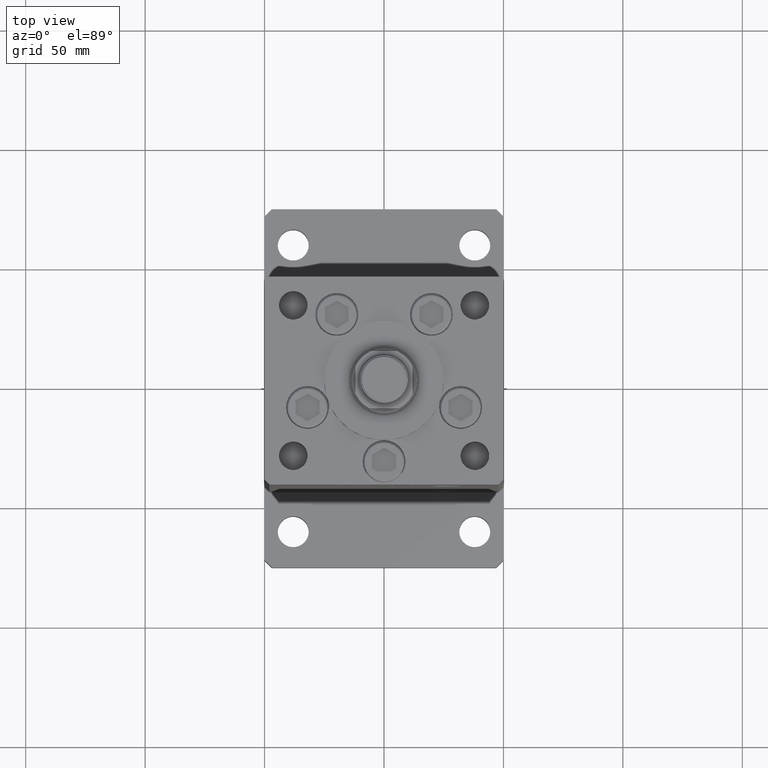
[diagram: clean part render]
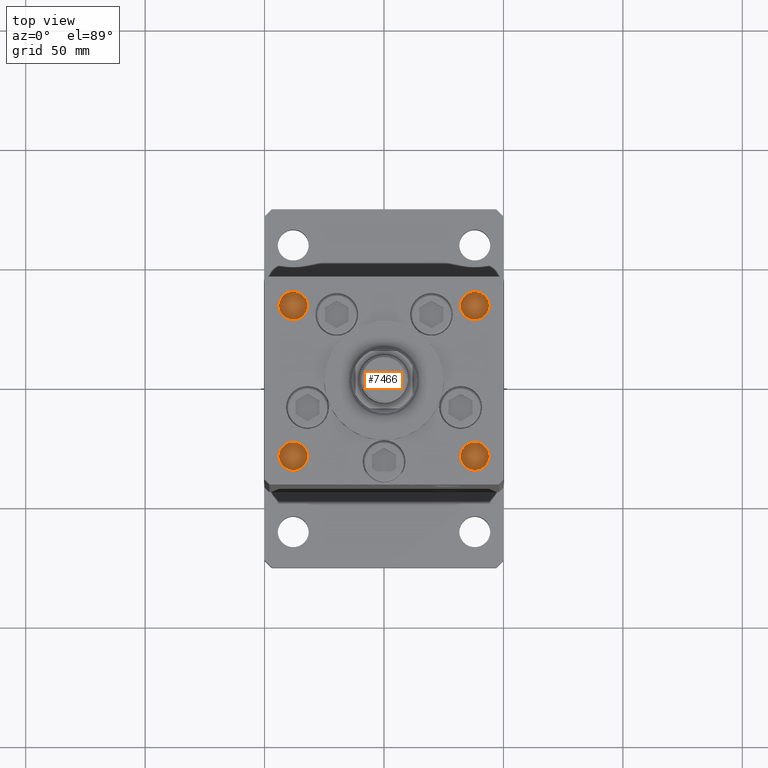
[diagram: same view with one face highlighted and labeled with its STEP entity id]
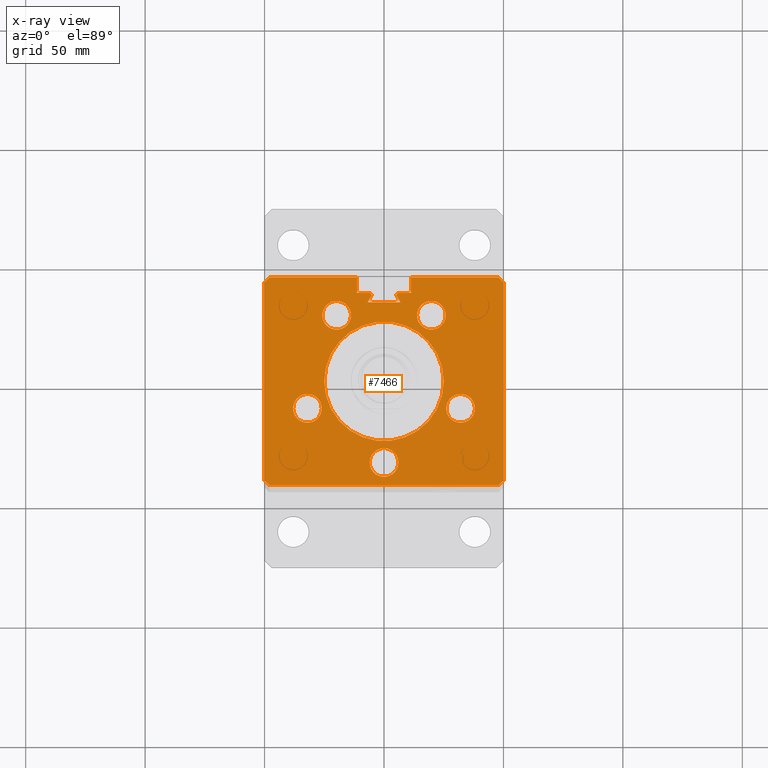
[diagram: x-ray of the same camera — body ghosted, the highlighted face saturated]
A machine part, top view. The second image highlights one B-rep face of the part: STEP entity #7466.
The next image is the same camera in x-ray: the body ghosted, the highlighted face saturated — about 0% of this face is hidden behind the body in this view.
In plain terms, the highlighted planar face has unit normal (0, 0, -1).
Its self-contained STEP definition (entity closure, byte-faithful):
#205 = VERTEX_POINT ( 'NONE', #25581 ) ;
#412 = FACE_BOUND ( 'NONE', #13850, .T. ) ;
#660 = EDGE_LOOP ( 'NONE', ( #44575, #12636 ) ) ;
#683 = FACE_BOUND ( 'NONE', #34792, .T. ) ;
#772 = EDGE_LOOP ( 'NONE', ( #31084, #20540 ) ) ;
#875 = DIRECTION ( 'NONE',  ( -1.000000000000000000, 0.000000000000000000, 0.000000000000000000 ) ) ;
#1034 = CARTESIAN_POINT ( 'NONE',  ( 0.000000000000000000, 36.99999999999999289, 148.5000000000000000 ) ) ;
#1080 = DIRECTION ( 'NONE',  ( 1.000000000000000000, 0.000000000000000000, 0.000000000000000000 ) ) ;
#1464 = LINE ( 'NONE', #18176, #18011 ) ;
#1532 = LINE ( 'NONE', #34912, #19777 ) ;
#1805 = ORIENTED_EDGE ( 'NONE', *, *, #51209, .F. ) ;
#1918 = EDGE_CURVE ( 'NONE', #31485, #20395, #3239, .T. ) ;
#1989 = VERTEX_POINT ( 'NONE', #3608 ) ;
#2248 = VECTOR ( 'NONE', #40827, 1000.000000000000000 ) ;
#2406 = VECTOR ( 'NONE', #29801, 1000.000000000000000 ) ;
#2408 = EDGE_CURVE ( 'NONE', #30475, #33214, #51959, .T. ) ;
#2467 = EDGE_CURVE ( 'NONE', #42352, #9868, #15726, .T. ) ;
#2491 = CARTESIAN_POINT ( 'NONE',  ( -49.99999999999998579, -41.49999999999999289, 148.5000000000000000 ) ) ;
#2498 = LINE ( 'NONE', #18123, #24694 ) ;
#2776 = DIRECTION ( 'NONE',  ( 1.000000000000000000, 0.000000000000000000, 0.000000000000000000 ) ) ;
#2987 = CARTESIAN_POINT ( 'NONE',  ( 11.24999999999999112, 43.50000000000000000, 148.5000000000000000 ) ) ;
#3037 = VERTEX_POINT ( 'NONE', #50360 ) ;
#3239 = CIRCLE ( 'NONE', #9373, 6.000000000000000000 ) ;
#3608 = CARTESIAN_POINT ( 'NONE',  ( 6.183333333333997928, 36.99999999999999289, 148.5000000000000000 ) ) ;
#3821 = EDGE_LOOP ( 'NONE', ( #7679, #1805 ) ) ;
#3849 = CIRCLE ( 'NONE', #16137, 0.9333333333340008142 ) ;
#4123 = CARTESIAN_POINT ( 'NONE',  ( 19.44653440471352113, 11.22746187336665713, 148.5000000000000000 ) ) ;
#4324 = CARTESIAN_POINT ( 'NONE',  ( -25.00000000000000000, 0.000000000000000000, 148.5000000000000000 ) ) ;
#4360 = DIRECTION ( 'NONE',  ( 1.000000000000000000, 0.000000000000000000, 0.000000000000000000 ) ) ;
#4482 = VERTEX_POINT ( 'NONE', #30656 ) ;
#4804 = DIRECTION ( 'NONE',  ( 0.000000000000000000, 0.000000000000000000, 1.000000000000000000 ) ) ;
#4943 = AXIS2_PLACEMENT_3D ( 'NONE', #12100, #16471, #41368 ) ;
#4993 = AXIS2_PLACEMENT_3D ( 'NONE', #32657, #7480, #17064 ) ;
#5341 = AXIS2_PLACEMENT_3D ( 'NONE', #53653, #39988, #23579 ) ;
#5604 = DIRECTION ( 'NONE',  ( 1.000000000000000000, 0.000000000000000000, 0.000000000000000000 ) ) ;
#6139 = CARTESIAN_POINT ( 'NONE',  ( -6.183333333333997928, 36.06666666666598786, 148.5000000000000000 ) ) ;
#6315 = CIRCLE ( 'NONE', #39546, 5.999999999999998224 ) ;
#6342 = LINE ( 'NONE', #9649, #47345 ) ;
#6428 = EDGE_CURVE ( 'NONE', #20395, #31485, #8838, .T. ) ;
#6947 = ORIENTED_EDGE ( 'NONE', *, *, #24638, .T. ) ;
#7123 = LINE ( 'NONE', #19726, #18857 ) ;
#7423 = CARTESIAN_POINT ( 'NONE',  ( -11.24999999999999822, 0.000000000000000000, 148.5000000000000000 ) ) ;
#7466 = ADVANCED_FACE ( 'NONE', ( #46672, #54086, #25601, #683, #9175, #37908, #412 ), #25867, .F. ) ;
#7480 = DIRECTION ( 'NONE',  ( 0.000000000000000000, 0.000000000000000000, 1.000000000000000000 ) ) ;
#7494 = VECTOR ( 'NONE', #39444, 1000.000000000000114 ) ;
#7679 = ORIENTED_EDGE ( 'NONE', *, *, #19044, .F. ) ;
#8334 = ORIENTED_EDGE ( 'NONE', *, *, #9891, .F. ) ;
#8418 = EDGE_CURVE ( 'NONE', #9868, #42352, #50872, .T. ) ;
#8458 = EDGE_CURVE ( 'NONE', #48253, #13357, #6342, .T. ) ;
#8488 = EDGE_LOOP ( 'NONE', ( #12477, #53087, #11725, #25642, #12990, #6947, #18585, #41984, #39371, #26934, #31574, #30040, #31903, #40657, #39251, #27242, #29997, #19086, #20325 ) ) ;
#8718 = DIRECTION ( 'NONE',  ( 0.000000000000000000, 0.000000000000000000, -1.000000000000000000 ) ) ;
#8791 = CARTESIAN_POINT ( 'NONE',  ( 5.375042956467942723, 35.59999999999898534, 148.5000000000000000 ) ) ;
#8838 = CIRCLE ( 'NONE', #5341, 6.000000000000000000 ) ;
#9042 = DIRECTION ( 'NONE',  ( 3.344045254895050973E-16, -1.000000000000000000, 0.000000000000000000 ) ) ;
#9175 = FACE_BOUND ( 'NONE', #772, .T. ) ;
#9373 = AXIS2_PLACEMENT_3D ( 'NONE', #17033, #45764, #12919 ) ;
#9582 = DIRECTION ( 'NONE',  ( 0.000000000000000000, 0.000000000000000000, 1.000000000000000000 ) ) ;
#9649 = CARTESIAN_POINT ( 'NONE',  ( 50.00000000000001421, 41.49999999999999289, 148.5000000000000000 ) ) ;
#9868 = VERTEX_POINT ( 'NONE', #50975 ) ;
#9891 = EDGE_CURVE ( 'NONE', #18971, #46195, #6315, .T. ) ;
#9985 = DIRECTION ( 'NONE',  ( 0.000000000000000000, 0.000000000000000000, -1.000000000000000000 ) ) ;
#10177 = AXIS2_PLACEMENT_3D ( 'NONE', #25616, #4804, #30524 ) ;
#10390 = LINE ( 'NONE', #47877, #15357 ) ;
#10850 = CARTESIAN_POINT ( 'NONE',  ( 49.99999999999998579, -41.49999999999999289, 148.5000000000000000 ) ) ;
#11107 = VERTEX_POINT ( 'NONE', #14495 ) ;
#11725 = ORIENTED_EDGE ( 'NONE', *, *, #49857, .F. ) ;
#12033 = AXIS2_PLACEMENT_3D ( 'NONE', #32553, #20234, #36924 ) ;
#12100 = CARTESIAN_POINT ( 'NONE',  ( -19.82068048781374259, 27.62500000000000355, 148.5000000000000000 ) ) ;
#12477 = ORIENTED_EDGE ( 'NONE', *, *, #24189, .T. ) ;
#12636 = ORIENTED_EDGE ( 'NONE', *, *, #1918, .F. ) ;
#12884 = LINE ( 'NONE', #21900, #20623 ) ;
#12919 = DIRECTION ( 'NONE',  ( 1.000000000000000000, 0.000000000000000000, 0.000000000000000000 ) ) ;
#12947 = VERTEX_POINT ( 'NONE', #15729 ) ;
#12990 = ORIENTED_EDGE ( 'NONE', *, *, #44501, .T. ) ;
#13151 = CARTESIAN_POINT ( 'NONE',  ( -26.05550741379015989, -11.33333333333333570, 148.5000000000000000 ) ) ;
#13357 = VERTEX_POINT ( 'NONE', #25093 ) ;
#13624 = CIRCLE ( 'NONE', #34589, 0.9333333333340008142 ) ;
#13644 = LINE ( 'NONE', #1034, #2406 ) ;
#13850 = EDGE_LOOP ( 'NONE', ( #40174, #23563 ) ) ;
#14010 = LINE ( 'NONE', #42759, #49460 ) ;
#14283 = CARTESIAN_POINT ( 'NONE',  ( -32.05550741379015989, -11.33333333333333570, 148.5000000000000000 ) ) ;
#14388 = CARTESIAN_POINT ( 'NONE',  ( 11.24999999999999822, 36.99999999999999289, 148.5000000000000000 ) ) ;
#14495 = CARTESIAN_POINT ( 'NONE',  ( -5.249999999999996447, 36.06666666666598786, 148.5000000000000000 ) ) ;
#14765 = EDGE_CURVE ( 'NONE', #35938, #48253, #2498, .T. ) ;
#15012 = AXIS2_PLACEMENT_3D ( 'NONE', #29167, #42561, #51041 ) ;
#15054 = CARTESIAN_POINT ( 'NONE',  ( 13.82068048781373371, 27.62500000000000711, 148.5000000000000000 ) ) ;
#15357 = VECTOR ( 'NONE', #40219, 1000.000000000000000 ) ;
#15627 = DIRECTION ( 'NONE',  ( 1.000000000000000000, 0.000000000000000000, 0.000000000000000000 ) ) ;
#15726 = CIRCLE ( 'NONE', #27075, 5.999999999999998224 ) ;
#15729 = CARTESIAN_POINT ( 'NONE',  ( -47.99999999999998579, -43.50000000000000000, 148.5000000000000000 ) ) ;
#15916 = CARTESIAN_POINT ( 'NONE',  ( -11.24999999999999822, 43.50000000000000000, 148.5000000000000000 ) ) ;
#15962 = VERTEX_POINT ( 'NONE', #30709 ) ;
#16137 = AXIS2_PLACEMENT_3D ( 'NONE', #25150, #8718, #49781 ) ;
#16471 = DIRECTION ( 'NONE',  ( 0.000000000000000000, 0.000000000000000000, 1.000000000000000000 ) ) ;
#16694 = LINE ( 'NONE', #20529, #34742 ) ;
#17033 = CARTESIAN_POINT ( 'NONE',  ( 4.163799117101000559E-15, -34.00000000000000000, 148.5000000000000000 ) ) ;
#17064 = DIRECTION ( 'NONE',  ( 1.000000000000000000, 0.000000000000000000, 0.000000000000000000 ) ) ;
#18011 = VECTOR ( 'NONE', #43072, 1000.000000000000000 ) ;
#18123 = CARTESIAN_POINT ( 'NONE',  ( 48.00000000000000711, 43.50000000000000000, 148.5000000000000000 ) ) ;
#18176 = CARTESIAN_POINT ( 'NONE',  ( 0.000000000000000000, 36.99999999999999289, 148.5000000000000000 ) ) ;
#18471 = CARTESIAN_POINT ( 'NONE',  ( 6.183333333333997928, 36.06666666666598786, 148.5000000000000000 ) ) ;
#18584 = VECTOR ( 'NONE', #48119, 1000.000000000000000 ) ;
#18585 = ORIENTED_EDGE ( 'NONE', *, *, #33847, .T. ) ;
#18676 = CARTESIAN_POINT ( 'NONE',  ( 19.82068048781373548, 27.62500000000000711, 148.5000000000000000 ) ) ;
#18857 = VECTOR ( 'NONE', #15627, 1000.000000000000000 ) ;
#18919 = LINE ( 'NONE', #2491, #7494 ) ;
#18971 = VERTEX_POINT ( 'NONE', #13151 ) ;
#19044 = EDGE_CURVE ( 'NONE', #4482, #32898, #33555, .T. ) ;
#19069 = DIRECTION ( 'NONE',  ( -0.000000000000000000, 0.000000000000000000, 1.000000000000000000 ) ) ;
#19086 = ORIENTED_EDGE ( 'NONE', *, *, #45112, .F. ) ;
#19118 = DIRECTION ( 'NONE',  ( 0.000000000000000000, 0.000000000000000000, 1.000000000000000000 ) ) ;
#19726 = CARTESIAN_POINT ( 'NONE',  ( -11.24999999999999822, 43.50000000000000000, 148.5000000000000000 ) ) ;
#19777 = VECTOR ( 'NONE', #42339, 1000.000000000000000 ) ;
#19810 = CIRCLE ( 'NONE', #4943, 6.000000000000001776 ) ;
#20089 = VERTEX_POINT ( 'NONE', #21050 ) ;
#20234 = DIRECTION ( 'NONE',  ( -0.000000000000000000, 0.000000000000000000, 1.000000000000000000 ) ) ;
#20325 = ORIENTED_EDGE ( 'NONE', *, *, #41157, .F. ) ;
#20395 = VERTEX_POINT ( 'NONE', #41333 ) ;
#20448 = CARTESIAN_POINT ( 'NONE',  ( -38.05550741379015989, -11.33333333333333570, 148.5000000000000000 ) ) ;
#20529 = CARTESIAN_POINT ( 'NONE',  ( -47.99999999999998579, -43.50000000000000000, 148.5000000000000000 ) ) ;
#20540 = ORIENTED_EDGE ( 'NONE', *, *, #31147, .F. ) ;
#20623 = VECTOR ( 'NONE', #9042, 1000.000000000000000 ) ;
#21050 = CARTESIAN_POINT ( 'NONE',  ( -48.00000000000001421, 43.50000000000000711, 148.5000000000000000 ) ) ;
#21900 = CARTESIAN_POINT ( 'NONE',  ( -50.00000000000001421, 41.49999999999999289, 148.5000000000000000 ) ) ;
#22520 = DIRECTION ( 'NONE',  ( 1.000000000000000000, 0.000000000000000000, 0.000000000000000000 ) ) ;
#22532 = CIRCLE ( 'NONE', #33032, 25.00000000000000000 ) ;
#23013 = VERTEX_POINT ( 'NONE', #41496 ) ;
#23563 = ORIENTED_EDGE ( 'NONE', *, *, #53833, .F. ) ;
#23579 = DIRECTION ( 'NONE',  ( 1.000000000000000000, 0.000000000000000000, 0.000000000000000000 ) ) ;
#23948 = EDGE_CURVE ( 'NONE', #20089, #3037, #1532, .T. ) ;
#23990 = LINE ( 'NONE', #10850, #34695 ) ;
#24189 = EDGE_CURVE ( 'NONE', #39632, #34897, #1464, .T. ) ;
#24638 = EDGE_CURVE ( 'NONE', #38704, #12947, #18919, .T. ) ;
#24694 = VECTOR ( 'NONE', #35879, 1000.000000000000000 ) ;
#24930 = DIRECTION ( 'NONE',  ( 0.4999999999999996114, -0.8660254037844389297, 0.000000000000000000 ) ) ;
#25093 = CARTESIAN_POINT ( 'NONE',  ( 49.99999999999998579, -41.49999999999999289, 148.5000000000000000 ) ) ;
#25150 = CARTESIAN_POINT ( 'NONE',  ( -6.183333333333997928, 36.06666666666598786, 148.5000000000000000 ) ) ;
#25581 = CARTESIAN_POINT ( 'NONE',  ( -6.876153656360465050, 32.99999999999986500, 148.5000000000000000 ) ) ;
#25601 = FACE_BOUND ( 'NONE', #3821, .T. ) ;
#25616 = CARTESIAN_POINT ( 'NONE',  ( 32.05550741379015989, -11.33333333333332682, 148.5000000000000000 ) ) ;
#25642 = ORIENTED_EDGE ( 'NONE', *, *, #23948, .T. ) ;
#25762 = ORIENTED_EDGE ( 'NONE', *, *, #8418, .F. ) ;
#25867 = PLANE ( 'NONE',  #15012 ) ;
#26011 = CARTESIAN_POINT ( 'NONE',  ( 32.05550741379015989, -11.33333333333332682, 148.5000000000000000 ) ) ;
#26512 = VERTEX_POINT ( 'NONE', #8791 ) ;
#26671 = DIRECTION ( 'NONE',  ( 0.000000000000000000, 0.000000000000000000, -1.000000000000000000 ) ) ;
#26773 = LINE ( 'NONE', #52238, #18584 ) ;
#26934 = ORIENTED_EDGE ( 'NONE', *, *, #14765, .F. ) ;
#27047 = DIRECTION ( 'NONE',  ( 1.000000000000000000, 0.000000000000000000, 0.000000000000000000 ) ) ;
#27075 = AXIS2_PLACEMENT_3D ( 'NONE', #47852, #19118, #27047 ) ;
#27108 = CARTESIAN_POINT ( 'NONE',  ( -25.82068048781374259, 27.62500000000000355, 148.5000000000000000 ) ) ;
#27242 = ORIENTED_EDGE ( 'NONE', *, *, #44040, .T. ) ;
#28229 = LINE ( 'NONE', #7423, #2248 ) ;
#28595 = CIRCLE ( 'NONE', #4993, 5.999999999999998224 ) ;
#28997 = EDGE_CURVE ( 'NONE', #46195, #18971, #28595, .T. ) ;
#29029 = LINE ( 'NONE', #4123, #46832 ) ;
#29167 = CARTESIAN_POINT ( 'NONE',  ( 0.000000000000000000, 0.000000000000000000, 148.5000000000000000 ) ) ;
#29251 = CIRCLE ( 'NONE', #34464, 0.9333333333340008142 ) ;
#29801 = DIRECTION ( 'NONE',  ( -1.000000000000000000, 0.000000000000000000, 0.000000000000000000 ) ) ;
#29997 = ORIENTED_EDGE ( 'NONE', *, *, #44556, .T. ) ;
#30040 = ORIENTED_EDGE ( 'NONE', *, *, #2408, .T. ) ;
#30475 = VERTEX_POINT ( 'NONE', #2987 ) ;
#30524 = DIRECTION ( 'NONE',  ( 1.000000000000000000, 0.000000000000000000, 0.000000000000000000 ) ) ;
#30656 = CARTESIAN_POINT ( 'NONE',  ( 38.05550741379015989, -11.33333333333332682, 148.5000000000000000 ) ) ;
#30709 = CARTESIAN_POINT ( 'NONE',  ( 25.00000000000000000, 3.061616997868383043E-15, 148.5000000000000000 ) ) ;
#31084 = ORIENTED_EDGE ( 'NONE', *, *, #44239, .F. ) ;
#31147 = EDGE_CURVE ( 'NONE', #35260, #23013, #19810, .T. ) ;
#31426 = CARTESIAN_POINT ( 'NONE',  ( 11.24999999999999822, 0.000000000000000000, 148.5000000000000000 ) ) ;
#31485 = VERTEX_POINT ( 'NONE', #35906 ) ;
#31574 = ORIENTED_EDGE ( 'NONE', *, *, #35576, .F. ) ;
#31903 = ORIENTED_EDGE ( 'NONE', *, *, #52836, .T. ) ;
#32193 = CARTESIAN_POINT ( 'NONE',  ( 0.000000000000000000, 0.000000000000000000, 148.5000000000000000 ) ) ;
#32509 = AXIS2_PLACEMENT_3D ( 'NONE', #18676, #52063, #22520 ) ;
#32553 = CARTESIAN_POINT ( 'NONE',  ( 0.000000000000000000, 0.000000000000000000, 148.5000000000000000 ) ) ;
#32657 = CARTESIAN_POINT ( 'NONE',  ( -32.05550741379015989, -11.33333333333333570, 148.5000000000000000 ) ) ;
#32873 = CIRCLE ( 'NONE', #10177, 5.999999999999998224 ) ;
#32898 = VERTEX_POINT ( 'NONE', #46502 ) ;
#33032 = AXIS2_PLACEMENT_3D ( 'NONE', #32193, #19069, #35741 ) ;
#33214 = VERTEX_POINT ( 'NONE', #14388 ) ;
#33555 = CIRCLE ( 'NONE', #52838, 5.999999999999998224 ) ;
#33694 = CIRCLE ( 'NONE', #44216, 6.000000000000001776 ) ;
#33847 = EDGE_CURVE ( 'NONE', #12947, #53928, #16694, .T. ) ;
#34002 = CARTESIAN_POINT ( 'NONE',  ( -6.183333333333997928, 36.99999999999999289, 148.5000000000000000 ) ) ;
#34464 = AXIS2_PLACEMENT_3D ( 'NONE', #18471, #26671, #5604 ) ;
#34589 = AXIS2_PLACEMENT_3D ( 'NONE', #6139, #9985, #35423 ) ;
#34695 = VECTOR ( 'NONE', #40404, 1000.000000000000114 ) ;
#34742 = VECTOR ( 'NONE', #4360, 1000.000000000000000 ) ;
#34792 = EDGE_LOOP ( 'NONE', ( #25762, #42098 ) ) ;
#34897 = VERTEX_POINT ( 'NONE', #45632 ) ;
#34912 = CARTESIAN_POINT ( 'NONE',  ( -48.00000000000001421, 43.50000000000000711, 148.5000000000000000 ) ) ;
#34978 = EDGE_LOOP ( 'NONE', ( #8334, #51482 ) ) ;
#35260 = VERTEX_POINT ( 'NONE', #27108 ) ;
#35423 = DIRECTION ( 'NONE',  ( 1.000000000000000000, 0.000000000000000000, 0.000000000000000000 ) ) ;
#35576 = EDGE_CURVE ( 'NONE', #30475, #35938, #26773, .T. ) ;
#35630 = DIRECTION ( 'NONE',  ( -3.344045254895050973E-16, -1.000000000000000000, 0.000000000000000000 ) ) ;
#35741 = DIRECTION ( 'NONE',  ( 1.000000000000000000, 0.000000000000000000, 0.000000000000000000 ) ) ;
#35879 = DIRECTION ( 'NONE',  ( 0.7071067811865487940, -0.7071067811865463515, 0.000000000000000000 ) ) ;
#35888 = DIRECTION ( 'NONE',  ( 0.000000000000000000, 0.000000000000000000, 1.000000000000000000 ) ) ;
#35906 = CARTESIAN_POINT ( 'NONE',  ( -5.999999999999995559, -34.00000000000000000, 148.5000000000000000 ) ) ;
#35938 = VERTEX_POINT ( 'NONE', #42875 ) ;
#36924 = DIRECTION ( 'NONE',  ( 1.000000000000000000, 0.000000000000000000, 0.000000000000000000 ) ) ;
#37908 = FACE_OUTER_BOUND ( 'NONE', #8488, .T. ) ;
#38331 = CARTESIAN_POINT ( 'NONE',  ( -5.375042956467942723, 35.59999999999898534, 148.5000000000000000 ) ) ;
#38704 = VERTEX_POINT ( 'NONE', #52930 ) ;
#39251 = ORIENTED_EDGE ( 'NONE', *, *, #44425, .T. ) ;
#39371 = ORIENTED_EDGE ( 'NONE', *, *, #8458, .F. ) ;
#39444 = DIRECTION ( 'NONE',  ( 0.7071067811865474617, -0.7071067811865474617, 0.000000000000000000 ) ) ;
#39546 = AXIS2_PLACEMENT_3D ( 'NONE', #14283, #47140, #51511 ) ;
#39632 = VERTEX_POINT ( 'NONE', #34002 ) ;
#39733 = VERTEX_POINT ( 'NONE', #15916 ) ;
#39988 = DIRECTION ( 'NONE',  ( 0.000000000000000000, 0.000000000000000000, 1.000000000000000000 ) ) ;
#40014 = CARTESIAN_POINT ( 'NONE',  ( -19.82068048781374259, 27.62500000000000355, 148.5000000000000000 ) ) ;
#40174 = ORIENTED_EDGE ( 'NONE', *, *, #52814, .F. ) ;
#40219 = DIRECTION ( 'NONE',  ( 0.4999999999999996114, 0.8660254037844389297, 0.000000000000000000 ) ) ;
#40305 = VERTEX_POINT ( 'NONE', #4324 ) ;
#40404 = DIRECTION ( 'NONE',  ( -0.7071067811865474617, -0.7071067811865474617, 0.000000000000000000 ) ) ;
#40657 = ORIENTED_EDGE ( 'NONE', *, *, #45133, .F. ) ;
#40827 = DIRECTION ( 'NONE',  ( 0.000000000000000000, 1.000000000000000000, 0.000000000000000000 ) ) ;
#41157 = EDGE_CURVE ( 'NONE', #39632, #11107, #3849, .T. ) ;
#41333 = CARTESIAN_POINT ( 'NONE',  ( 6.000000000000004441, -34.00000000000000000, 148.5000000000000000 ) ) ;
#41368 = DIRECTION ( 'NONE',  ( 1.000000000000000000, 0.000000000000000000, 0.000000000000000000 ) ) ;
#41496 = CARTESIAN_POINT ( 'NONE',  ( -13.82068048781373903, 27.62500000000000355, 148.5000000000000000 ) ) ;
#41984 = ORIENTED_EDGE ( 'NONE', *, *, #53764, .F. ) ;
#42098 = ORIENTED_EDGE ( 'NONE', *, *, #2467, .F. ) ;
#42203 = VERTEX_POINT ( 'NONE', #38331 ) ;
#42339 = DIRECTION ( 'NONE',  ( -0.7071067811865463515, -0.7071067811865487940, 0.000000000000000000 ) ) ;
#42352 = VERTEX_POINT ( 'NONE', #15054 ) ;
#42561 = DIRECTION ( 'NONE',  ( 0.000000000000000000, 0.000000000000000000, -1.000000000000000000 ) ) ;
#42611 = CIRCLE ( 'NONE', #12033, 25.00000000000000000 ) ;
#42759 = CARTESIAN_POINT ( 'NONE',  ( 0.000000000000000000, 32.99999999999986500, 148.5000000000000000 ) ) ;
#42875 = CARTESIAN_POINT ( 'NONE',  ( 48.00000000000000711, 43.50000000000000000, 148.5000000000000000 ) ) ;
#43072 = DIRECTION ( 'NONE',  ( -1.000000000000000000, 0.000000000000000000, 0.000000000000000000 ) ) ;
#44040 = EDGE_CURVE ( 'NONE', #53323, #205, #14010, .T. ) ;
#44216 = AXIS2_PLACEMENT_3D ( 'NONE', #40014, #35888, #2776 ) ;
#44239 = EDGE_CURVE ( 'NONE', #23013, #35260, #33694, .T. ) ;
#44327 = EDGE_CURVE ( 'NONE', #34897, #39733, #28229, .T. ) ;
#44425 = EDGE_CURVE ( 'NONE', #26512, #53323, #29029, .T. ) ;
#44501 = EDGE_CURVE ( 'NONE', #3037, #38704, #12884, .T. ) ;
#44556 = EDGE_CURVE ( 'NONE', #205, #42203, #10390, .T. ) ;
#44575 = ORIENTED_EDGE ( 'NONE', *, *, #6428, .F. ) ;
#44954 = CARTESIAN_POINT ( 'NONE',  ( 6.876153656360465050, 32.99999999999986500, 148.5000000000000000 ) ) ;
#45112 = EDGE_CURVE ( 'NONE', #11107, #42203, #13624, .T. ) ;
#45133 = EDGE_CURVE ( 'NONE', #26512, #1989, #29251, .T. ) ;
#45632 = CARTESIAN_POINT ( 'NONE',  ( -11.24999999999999822, 36.99999999999999289, 148.5000000000000000 ) ) ;
#45764 = DIRECTION ( 'NONE',  ( 0.000000000000000000, 0.000000000000000000, 1.000000000000000000 ) ) ;
#45853 = CARTESIAN_POINT ( 'NONE',  ( 47.99999999999998579, -43.50000000000000000, 148.5000000000000000 ) ) ;
#46195 = VERTEX_POINT ( 'NONE', #20448 ) ;
#46502 = CARTESIAN_POINT ( 'NONE',  ( 26.05550741379016344, -11.33333333333332682, 148.5000000000000000 ) ) ;
#46672 = FACE_BOUND ( 'NONE', #34978, .T. ) ;
#46832 = VECTOR ( 'NONE', #24930, 1000.000000000000000 ) ;
#47140 = DIRECTION ( 'NONE',  ( 0.000000000000000000, 0.000000000000000000, 1.000000000000000000 ) ) ;
#47170 = CARTESIAN_POINT ( 'NONE',  ( 50.00000000000001421, 41.49999999999999289, 148.5000000000000000 ) ) ;
#47345 = VECTOR ( 'NONE', #35630, 1000.000000000000000 ) ;
#47852 = CARTESIAN_POINT ( 'NONE',  ( 19.82068048781373548, 27.62500000000000711, 148.5000000000000000 ) ) ;
#47877 = CARTESIAN_POINT ( 'NONE',  ( -19.44653440471352113, 11.22746187336665713, 148.5000000000000000 ) ) ;
#48119 = DIRECTION ( 'NONE',  ( 1.000000000000000000, 0.000000000000000000, 0.000000000000000000 ) ) ;
#48253 = VERTEX_POINT ( 'NONE', #47170 ) ;
#49460 = VECTOR ( 'NONE', #875, 1000.000000000000000 ) ;
#49781 = DIRECTION ( 'NONE',  ( 1.000000000000000000, 0.000000000000000000, 0.000000000000000000 ) ) ;
#49857 = EDGE_CURVE ( 'NONE', #20089, #39733, #7123, .T. ) ;
#50360 = CARTESIAN_POINT ( 'NONE',  ( -50.00000000000001421, 41.49999999999999289, 148.5000000000000000 ) ) ;
#50872 = CIRCLE ( 'NONE', #32509, 5.999999999999998224 ) ;
#50975 = CARTESIAN_POINT ( 'NONE',  ( 25.82068048781373193, 27.62500000000000711, 148.5000000000000000 ) ) ;
#51041 = DIRECTION ( 'NONE',  ( -1.000000000000000000, 0.000000000000000000, -0.000000000000000000 ) ) ;
#51209 = EDGE_CURVE ( 'NONE', #32898, #4482, #32873, .T. ) ;
#51482 = ORIENTED_EDGE ( 'NONE', *, *, #28997, .F. ) ;
#51511 = DIRECTION ( 'NONE',  ( 1.000000000000000000, 0.000000000000000000, 0.000000000000000000 ) ) ;
#51959 = LINE ( 'NONE', #31426, #54172 ) ;
#52063 = DIRECTION ( 'NONE',  ( 0.000000000000000000, 0.000000000000000000, 1.000000000000000000 ) ) ;
#52236 = DIRECTION ( 'NONE',  ( -0.000000000000000000, -1.000000000000000000, 0.000000000000000000 ) ) ;
#52238 = CARTESIAN_POINT ( 'NONE',  ( -11.24999999999999822, 43.50000000000000000, 148.5000000000000000 ) ) ;
#52814 = EDGE_CURVE ( 'NONE', #40305, #15962, #42611, .T. ) ;
#52836 = EDGE_CURVE ( 'NONE', #33214, #1989, #13644, .T. ) ;
#52838 = AXIS2_PLACEMENT_3D ( 'NONE', #26011, #9582, #1080 ) ;
#52930 = CARTESIAN_POINT ( 'NONE',  ( -49.99999999999998579, -41.49999999999999289, 148.5000000000000000 ) ) ;
#53087 = ORIENTED_EDGE ( 'NONE', *, *, #44327, .T. ) ;
#53323 = VERTEX_POINT ( 'NONE', #44954 ) ;
#53653 = CARTESIAN_POINT ( 'NONE',  ( 4.163799117101000559E-15, -34.00000000000000000, 148.5000000000000000 ) ) ;
#53764 = EDGE_CURVE ( 'NONE', #13357, #53928, #23990, .T. ) ;
#53833 = EDGE_CURVE ( 'NONE', #15962, #40305, #22532, .T. ) ;
#53928 = VERTEX_POINT ( 'NONE', #45853 ) ;
#54086 = FACE_BOUND ( 'NONE', #660, .T. ) ;
#54172 = VECTOR ( 'NONE', #52236, 1000.000000000000000 ) ;